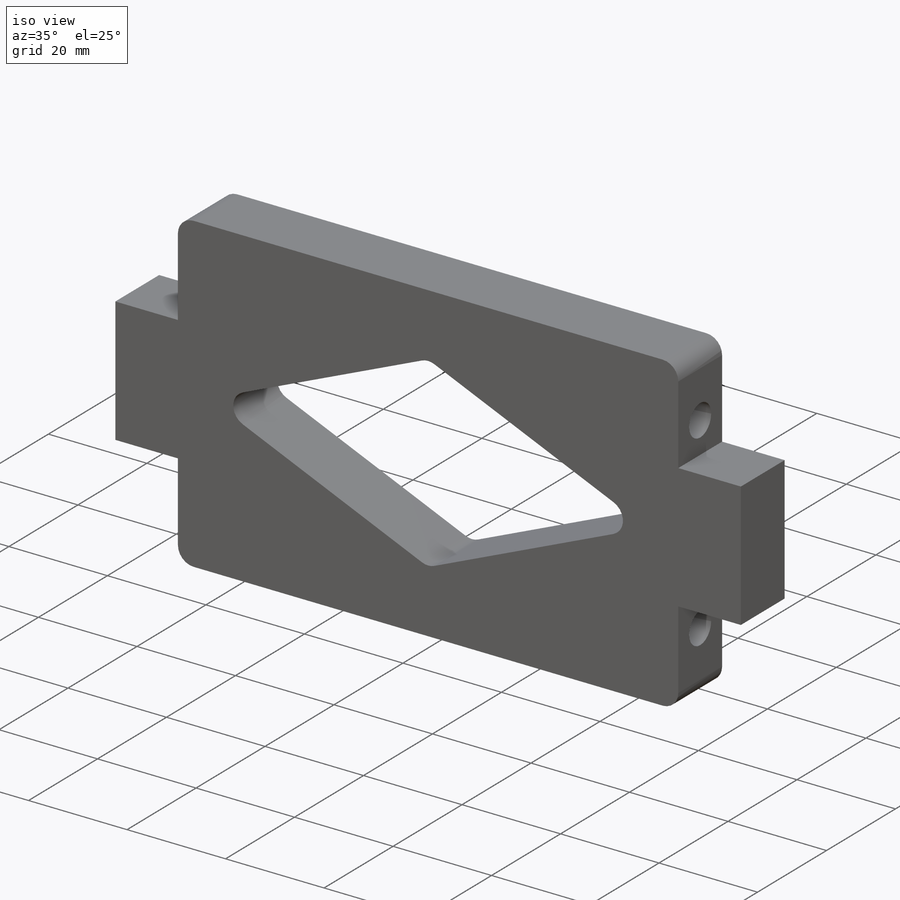
[diagram: iso view]
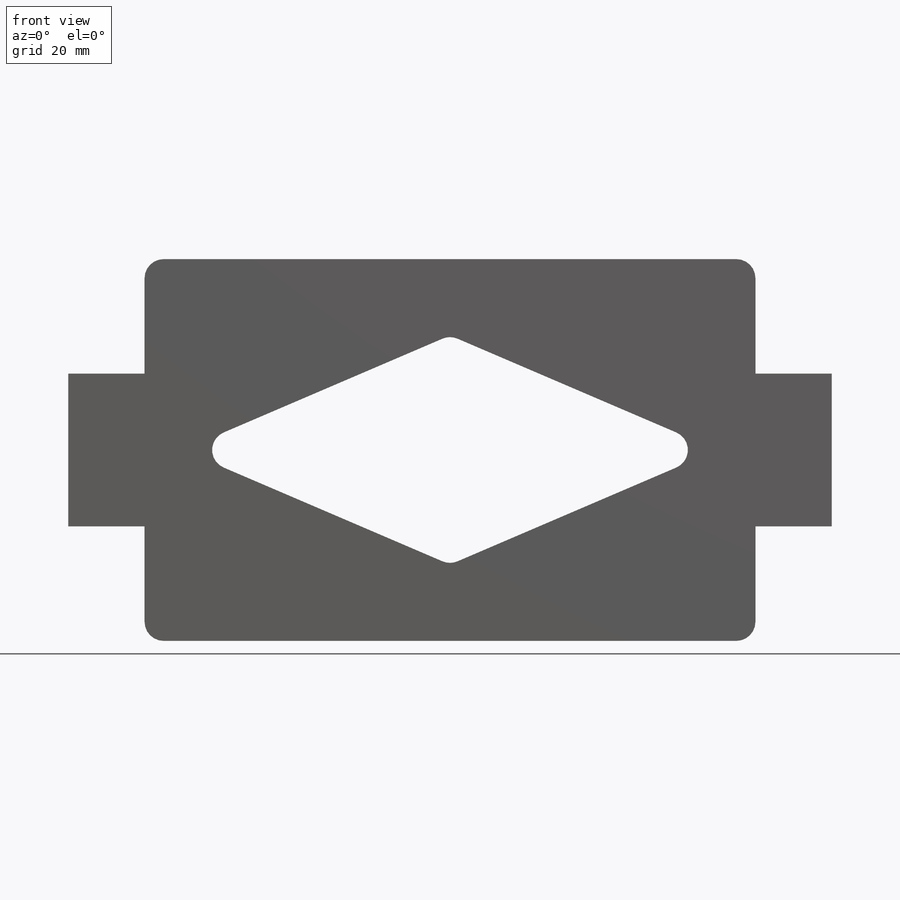
[diagram: front view]
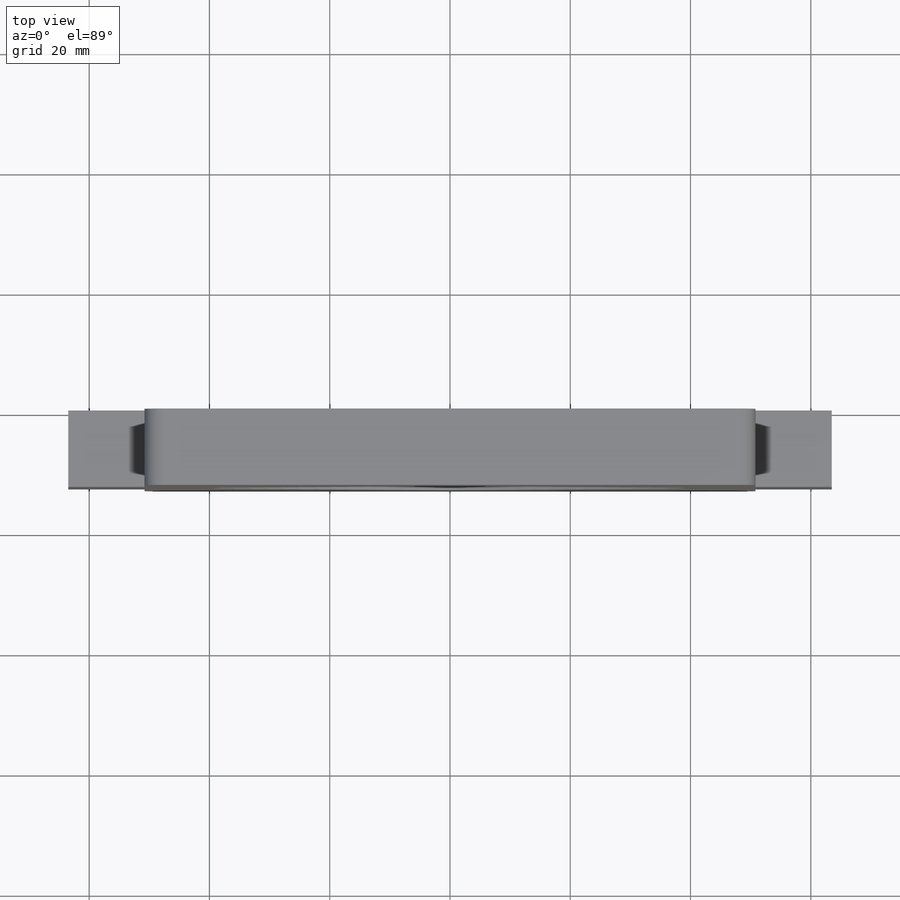
[diagram: top view]
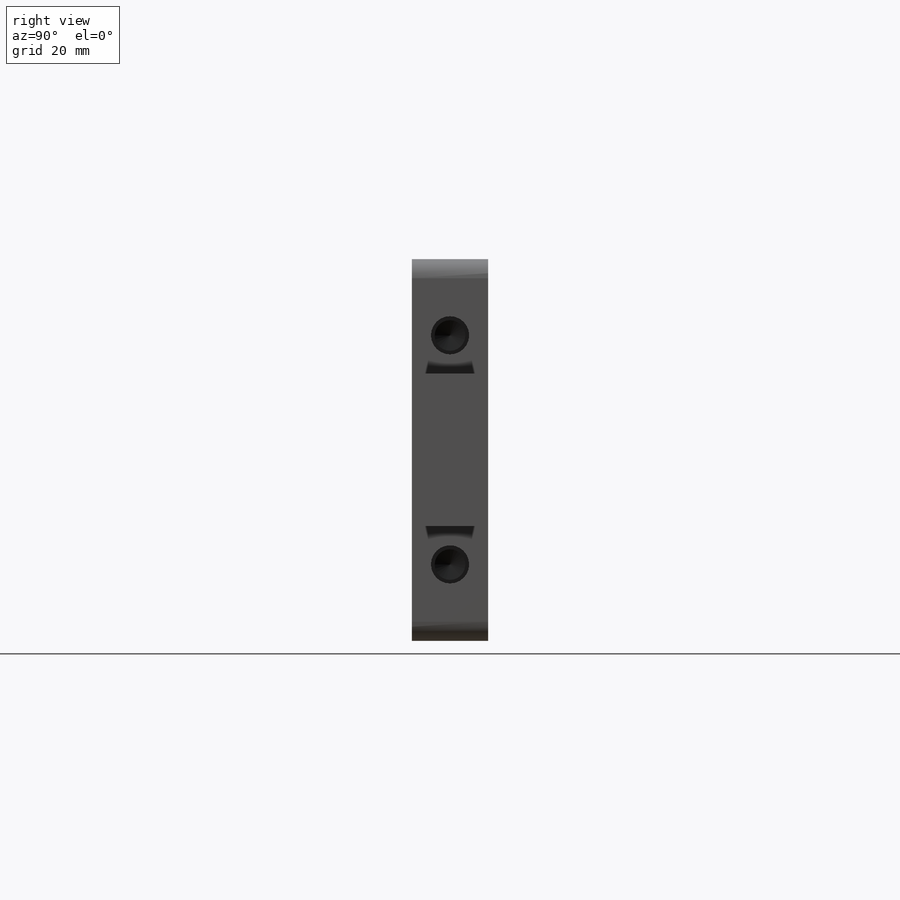
[diagram: right view]
SOLIDWORKS PART (.sldprt)
format: sldprt  version: not decoded by parser v0  size: 255,488 bytes
history: native  units: mm
features: sketch x4, fillet x2, material x1, extrude x1, hole x1, mirror x1, cut_extrude x1 (+13 scaffold rows collapsed)
feature tree (24):
  scaffold x13  (default folders/planes/origin — collapsed)
  material  "6061-T6 (SS)"
  sketch  "Sketch1"  dims[c1.D1=~82.464111mm c1.D2=~73.690131mm c2.D1=50.8mm c2.D2=31.75mm c2.D3=~25.363271mm c2.D4=~18.26775mm c3.D3=~25.363271mm c3.D4=~15.333156mm c4.D3=25.4mm c4.D4=12.7mm]
  extrude  "Boss-Extrude1"  Depth=12.7mm
  hole  "1/4-20 Tapped Hole1"  Diameter=5.1054mm Depth=16.51mm
  sketch  "Sketch3"  dims[D1=38.1mm]
  sketch  "Sketch2"  dims[hole-wizard template sketch: 34 standard entries collapsed; hole parameters above]
  mirror  "Mirror1"
  sketch  "Sketch4"  dims[D1=19.05mm D2=44.45mm]
  cut_extrude  "Cut-Extrude1"  [1 undecoded]
  fillet  "Fillet1"  Radius=3.175mm
  fillet  "Fillet2"  Radius=3.175mm
decode coverage: 8 of 10 modeling features carry decoded parameters
note: ~ marks probable driven/reference dimensions
note: 1 parameter value undecoded
note: suppression state not decoded; provenance and decode notes live in map.json
